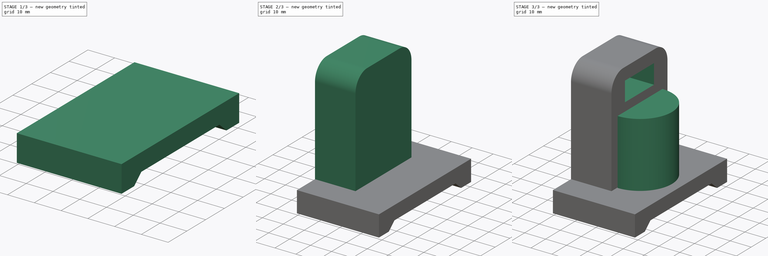
[diagram: build sequence overview — one tinted view per stage of 3, left to right]
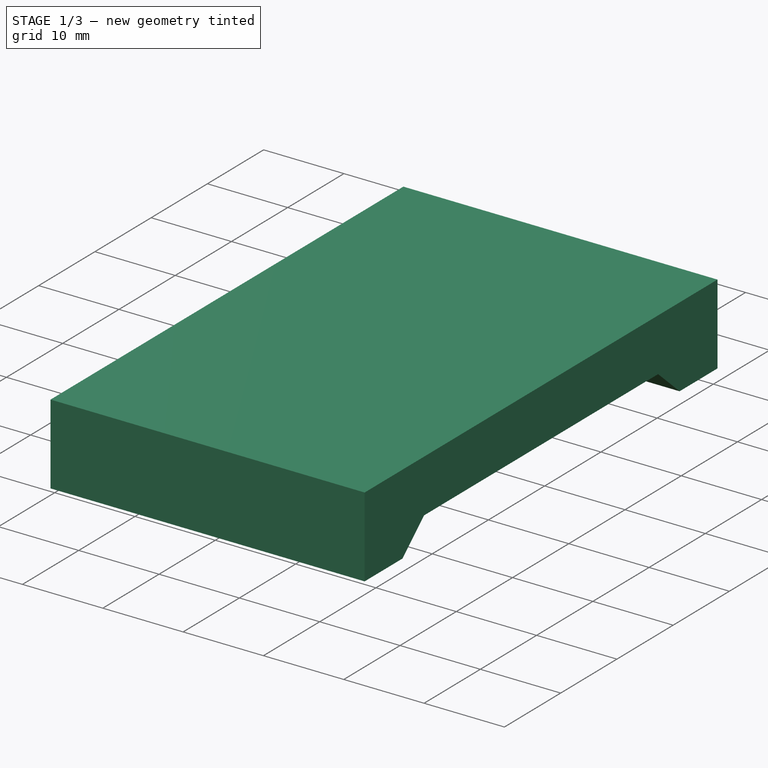
[diagram: stage 1 of 3 — iso view after this stage's code; geometry added in this stage tinted green]
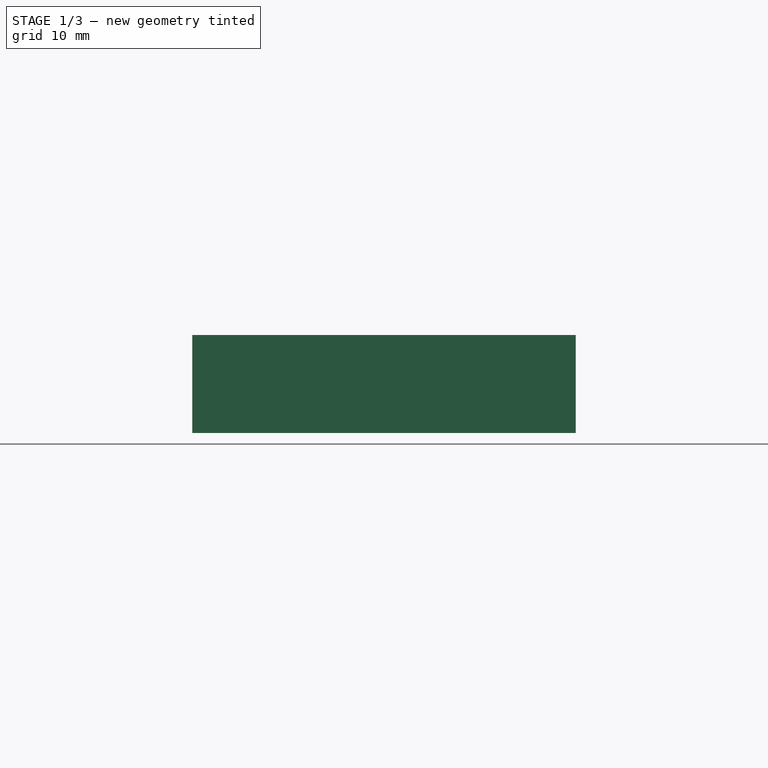
[diagram: stage 1 of 3 — front view after this stage's code; geometry added in this stage tinted green]
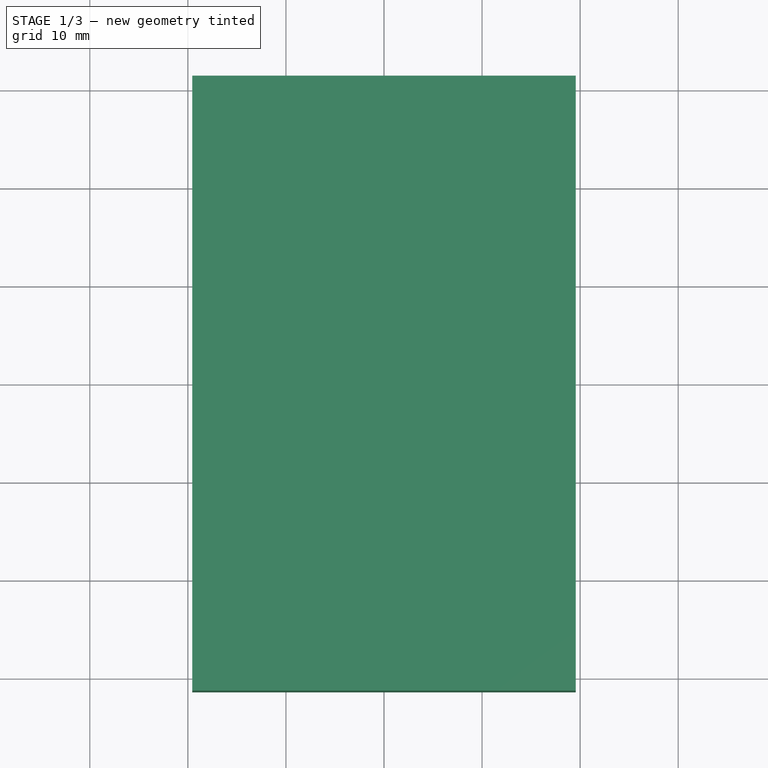
[diagram: stage 1 of 3 — top view after this stage's code; geometry added in this stage tinted green]
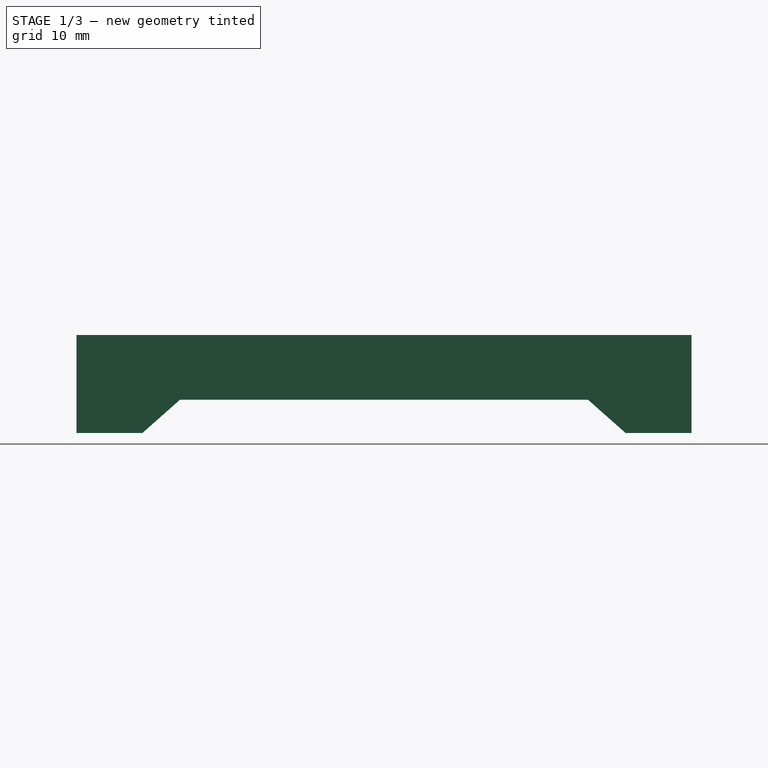
[diagram: stage 1 of 3 — right view after this stage's code; geometry added in this stage tinted green]
FCSTD DOCUMENT  (FreeCAD 0.21R33771 (Git))
Label: ex68
License: All rights reserved
LicenseURL: http://en.wikipedia.org/wiki/All_rights_reserved
objects: Sketcher::SketchObject×5, PartDesign::Pad×3, PartDesign::Pocket×2, PartDesign::Fillet×1, PartDesign::Body×1
note: 18 computed .brp shape members not serialized (recipe doc carries the construction recipe); baked Part::Feature solids carry a one-line shape summary decoded from their .brp

FEATURE [Sketcher::SketchObject] Sketch
  FullyConstrained = false
  MapMode = 5
  Support = -> [XY_Plane]
  sketch-geometry (5):
    g0: LineSegment StartX=-19.5508 StartY=31.3644 StartZ=0 EndX=-19.5508 EndY=-31.3644 EndZ=0
    g1: LineSegment StartX=-19.5508 StartY=-31.3644 StartZ=0 EndX=19.5508 EndY=-31.3644 EndZ=0
    g2: LineSegment StartX=19.5508 StartY=-31.3644 StartZ=0 EndX=19.5508 EndY=31.3644 EndZ=0
    g3: LineSegment StartX=19.5508 StartY=31.3644 StartZ=0 EndX=-19.5508 EndY=31.3644 EndZ=0
    g4: GeomPoint X=0 Y=0 Z=0
  constraints (10):
    c: Coincident(g0,g1)
    c: Coincident(g1,g2)
    c: Coincident(g2,g3)
    c: Coincident(g3,g0)
    c: Horizontal(g1)
    c: Horizontal(g3)
    c: Vertical(g0)
    c: Vertical(g2)
    c: Symmetric(g1,g0,g4)
    c: Coincident(g4,g-1)
FEATURE [PartDesign::Pad] Pad
  Direction = (0,0,1)
  Length = 10
  Length2 = 10
  Profile = -> Sketch
  ReferenceAxis = -> Sketch [N_Axis]
  Refine = true
  Type = 0
FEATURE [Sketcher::SketchObject] Sketch001
  FullyConstrained = false
  MapMode = 5
  Placement = pos=(19.5508,0,0) rot=(0.57735,0.57735,0.57735;2.0944rad)
  Support = -> [Pad]
  sketch-geometry (4):
    g0: LineSegment StartX=-24.6397 StartY=0 StartZ=0 EndX=-20.813 EndY=3.39147 EndZ=0
    g1: LineSegment StartX=-20.813 StartY=3.39147 StartZ=0 EndX=20.813 EndY=3.39147 EndZ=0
    g2: LineSegment StartX=20.813 StartY=3.39147 StartZ=0 EndX=24.6397 EndY=0 EndZ=0
    g3: LineSegment StartX=-24.6397 StartY=0 StartZ=0 EndX=24.6397 EndY=0 EndZ=0
  constraints (7):
    c: PointOnObject(g0,g-1)
    c: Coincident(g2,g1)
    c: Symmetric(g0,g2,g-1)
    c: Symmetric(g0,g1,g-2)
    c: Coincident(g0,g1)
    c: Coincident(g3,g0)
    c: Coincident(g3,g2)
FEATURE [PartDesign::Pocket] Pocket
  BaseFeature = -> Pad
  Direction = (-1,0,0)
  Length = 5
  Length2 = 5
  Profile = -> Sketch001
  ReferenceAxis = -> Sketch001 [N_Axis]
  Refine = true
  Type = 1
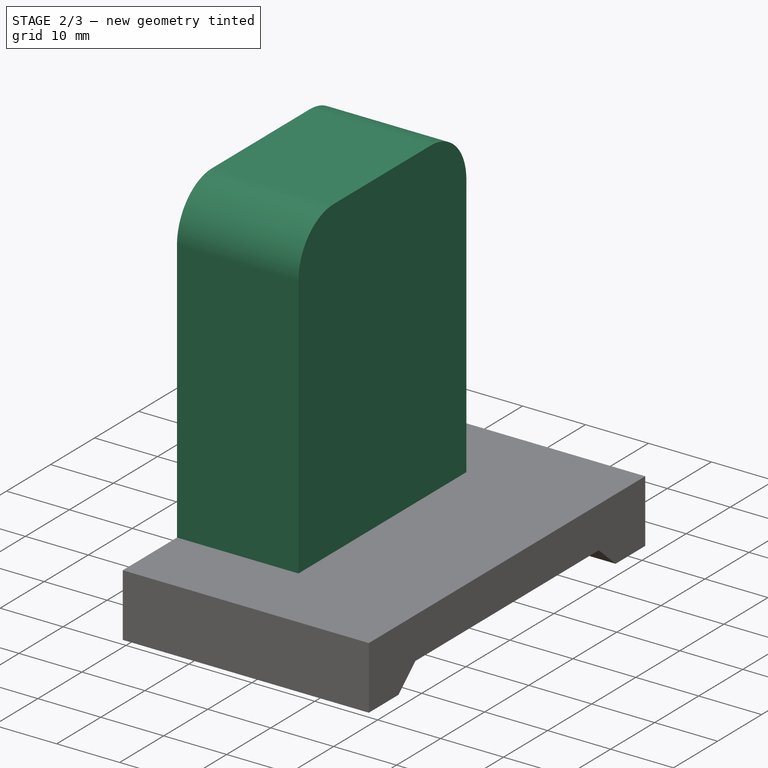
[diagram: stage 2 of 3 — iso view after this stage's code; geometry added in this stage tinted green]
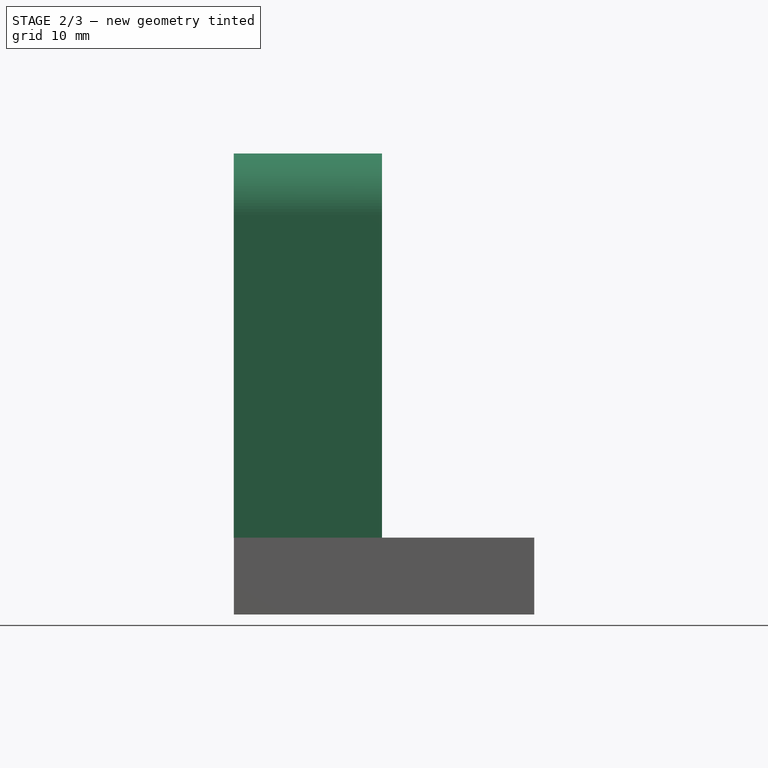
[diagram: stage 2 of 3 — front view after this stage's code; geometry added in this stage tinted green]
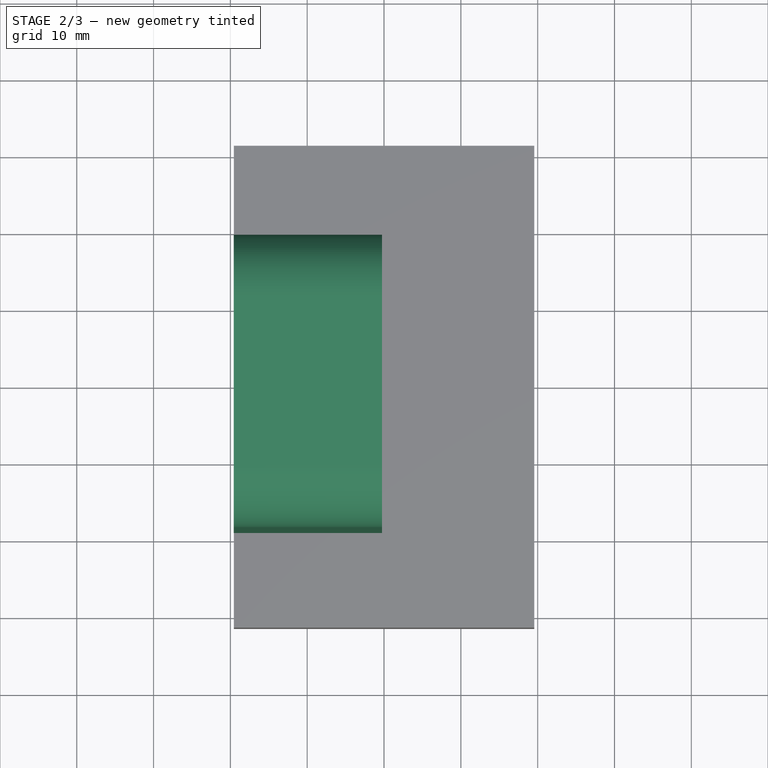
[diagram: stage 2 of 3 — top view after this stage's code; geometry added in this stage tinted green]
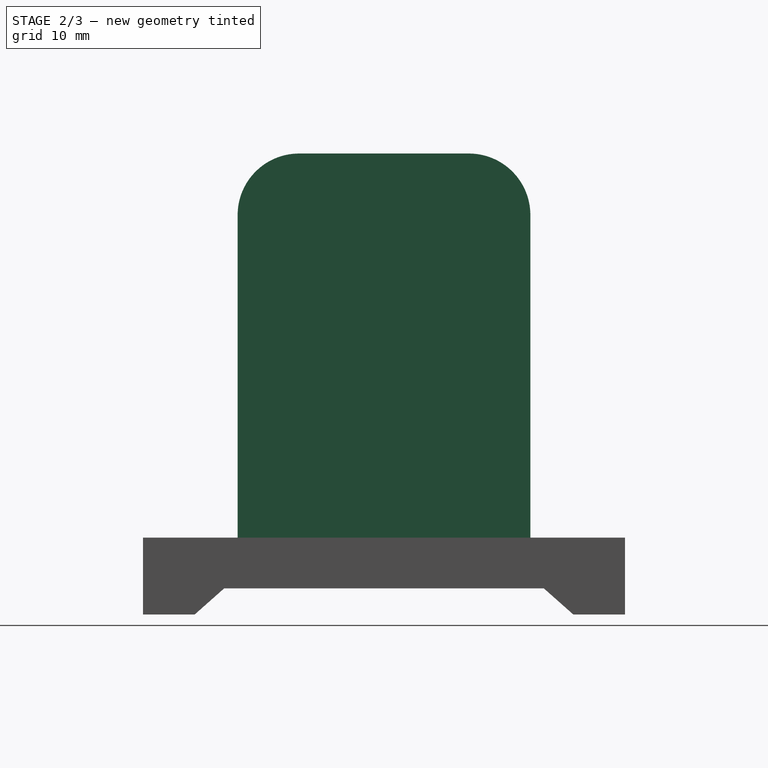
[diagram: stage 2 of 3 — right view after this stage's code; geometry added in this stage tinted green]
FEATURE [Sketcher::SketchObject] Sketch002
  FullyConstrained = false
  MapMode = 5
  Placement = pos=(0,0,10) rot=(0,0,1;0rad)
  Support = -> [Pocket]
  sketch-geometry (5):
    g0: LineSegment StartX=-0.255606 StartY=-19.0516 StartZ=0 EndX=-0.255606 EndY=19.0516 EndZ=0
    g1: LineSegment StartX=-0.255606 StartY=19.0516 StartZ=0 EndX=-19.5568 EndY=19.0516 EndZ=0
    g2: LineSegment StartX=-19.5568 StartY=19.0516 StartZ=0 EndX=-19.5568 EndY=-19.0516 EndZ=0
    g3: LineSegment StartX=-19.5568 StartY=-19.0516 StartZ=0 EndX=-0.255606 EndY=-19.0516 EndZ=0
    g4: GeomPoint X=-9.90619 Y=0 Z=0
  constraints (10):
    c: Coincident(g0,g1)
    c: Coincident(g1,g2)
    c: Coincident(g2,g3)
    c: Coincident(g3,g0)
    c: Horizontal(g1)
    c: Horizontal(g3)
    c: Vertical(g0)
    c: Vertical(g2)
    c: Symmetric(g1,g0,g4)
    c: PointOnObject(g4,g-1)
FEATURE [PartDesign::Pad] Pad001
  BaseFeature = -> Pocket
  Direction = (0,0,1)
  Length = 50
  Length2 = 10
  Profile = -> Sketch002
  ReferenceAxis = -> Sketch002 [N_Axis]
  Refine = true
  Type = 0
FEATURE [PartDesign::Fillet] Fillet
  Base = -> Pad001 [Edge35,Edge39]
  BaseFeature = -> Pad001
  Radius = 8
  Refine = true
  SupportTransform = false
  UseAllEdges = false
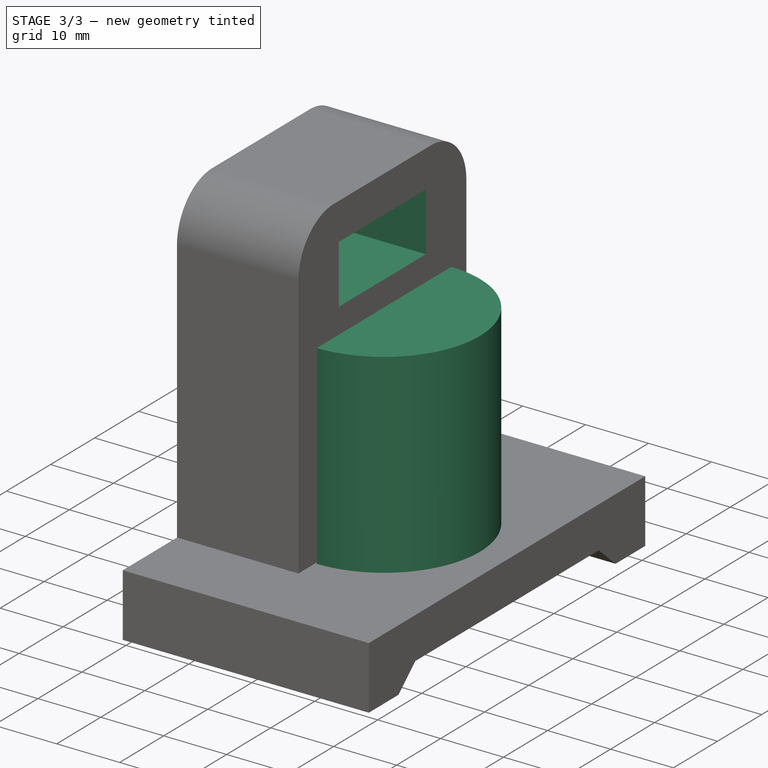
[diagram: stage 3 of 3 — iso view after this stage's code; geometry added in this stage tinted green]
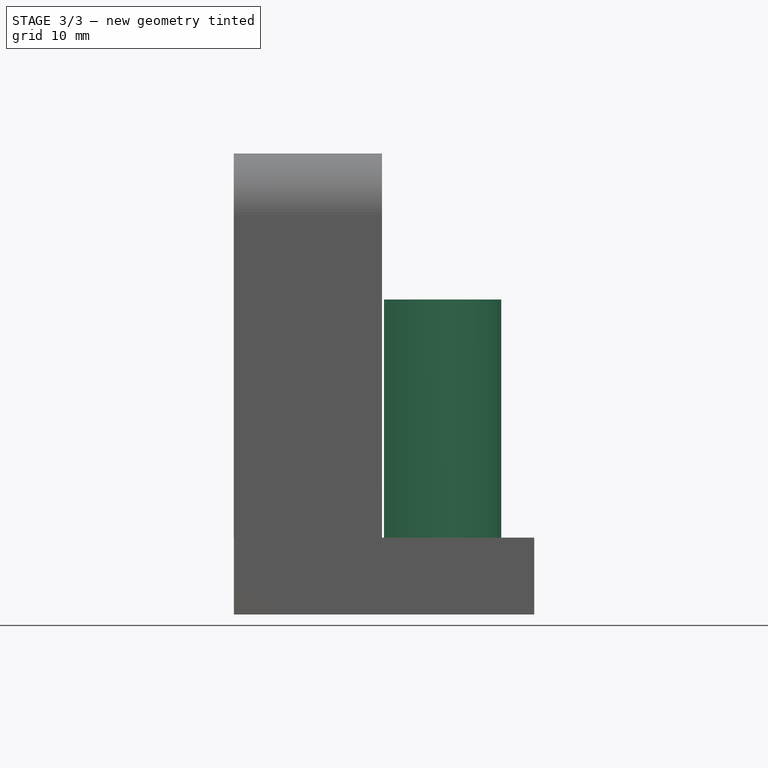
[diagram: stage 3 of 3 — front view after this stage's code; geometry added in this stage tinted green]
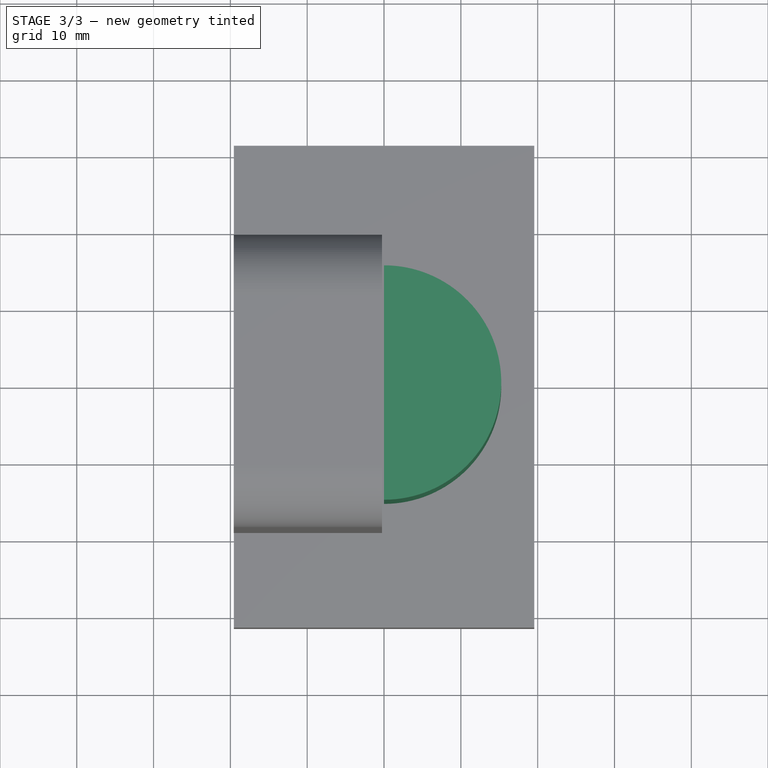
[diagram: stage 3 of 3 — top view after this stage's code; geometry added in this stage tinted green]
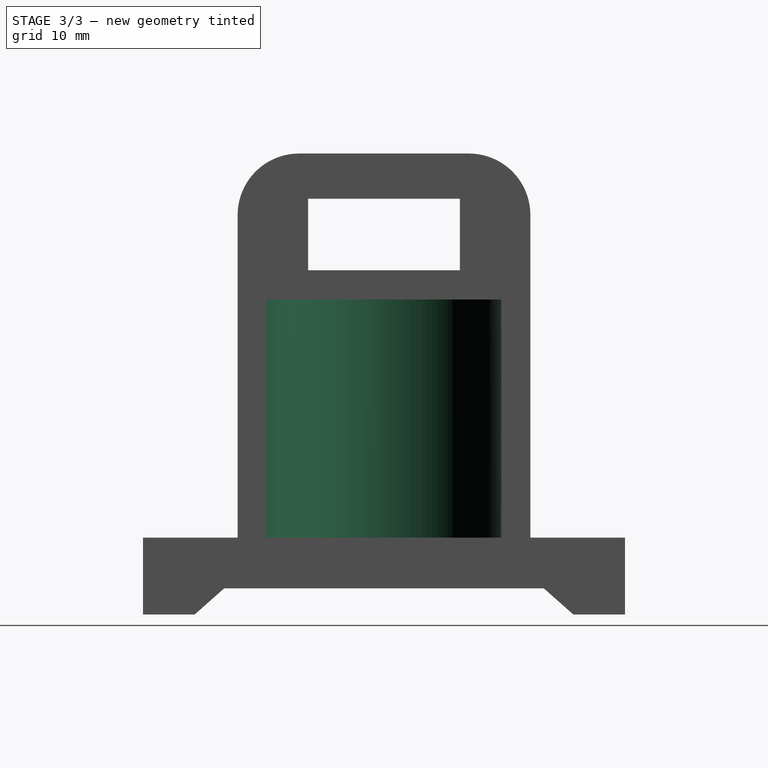
[diagram: stage 3 of 3 — right view after this stage's code; geometry added in this stage tinted green]
FEATURE [Sketcher::SketchObject] Sketch003
  FullyConstrained = false
  MapMode = 5
  Placement = pos=(0,0,10) rot=(0,0,1;0rad)
  Support = -> [Fillet]
  sketch-geometry (3):
    g0: ArcOfCircle CenterX=-2.8e-15 CenterY=0 CenterZ=0 NormalX=0 NormalY=0 NormalZ=1 AngleXU=0 Radius=15.2603 StartAngle=4.71239 EndAngle=7.85398
    g1: LineSegment StartX=-2.8e-15 StartY=0 StartZ=0 EndX=-2.8e-15 EndY=15.2603 EndZ=0
    g2: LineSegment StartX=-2.8e-15 StartY=0 StartZ=0 EndX=-2.8e-15 EndY=-15.2603 EndZ=0
  constraints (7):
    c: Coincident(g0,g-1)
    c: Coincident(g1,g0)
    c: Vertical(g1)
    c: Coincident(g2,g0)
    c: Vertical(g2)
    c: Coincident(g0,g1)
    c: Coincident(g0,g2)
FEATURE [PartDesign::Pad] Pad002
  BaseFeature = -> Fillet
  Direction = (0,0,1)
  Length = 31
  Length2 = 10
  Profile = -> Sketch003
  ReferenceAxis = -> Sketch003 [N_Axis]
  Refine = true
  Type = 0
FEATURE [Sketcher::SketchObject] Sketch004
  FullyConstrained = false
  MapMode = 5
  Placement = pos=(-0.255606,0,0) rot=(0.57735,0.57735,0.57735;2.0944rad)
  Support = -> [Pad002]
  sketch-geometry (5):
    g0: LineSegment StartX=-9.87866 StartY=54.1188 StartZ=0 EndX=-9.87866 EndY=44.801 EndZ=0
    g1: LineSegment StartX=-9.87866 StartY=44.801 StartZ=0 EndX=9.87866 EndY=44.801 EndZ=0
    g2: LineSegment StartX=9.87866 StartY=44.801 StartZ=0 EndX=9.87866 EndY=54.1188 EndZ=0
    g3: LineSegment StartX=9.87866 StartY=54.1188 StartZ=0 EndX=-9.87866 EndY=54.1188 EndZ=0
    g4: GeomPoint X=0 Y=49.4599 Z=0
  constraints (10):
    c: Coincident(g0,g1)
    c: Coincident(g1,g2)
    c: Coincident(g2,g3)
    c: Coincident(g3,g0)
    c: Horizontal(g1)
    c: Horizontal(g3)
    c: Vertical(g0)
    c: Vertical(g2)
    c: Symmetric(g1,g0,g4)
    c: PointOnObject(g4,g-2)
FEATURE [PartDesign::Pocket] Pocket001
  BaseFeature = -> Pad002
  Direction = (-1,0,0)
  Length = 5
  Length2 = 5
  Profile = -> Sketch004
  ReferenceAxis = -> Sketch004 [N_Axis]
  Refine = true
  Type = 1
FEATURE [PartDesign::Body] Body
  Group = -> [Sketch,Pad,Sketch001,Pocket,Sketch002,Pad001,Fillet,Sketch003,Pad002,Sketch004,Pocket001]
  Origin = -> Origin
  Tip = -> Pocket001
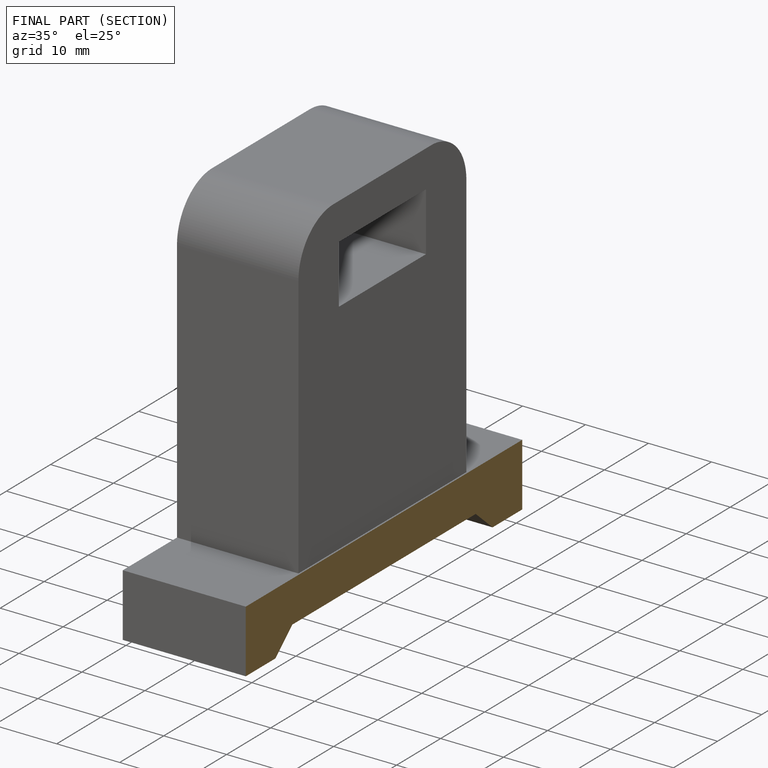
[diagram: finished part — half-section view (interior)]
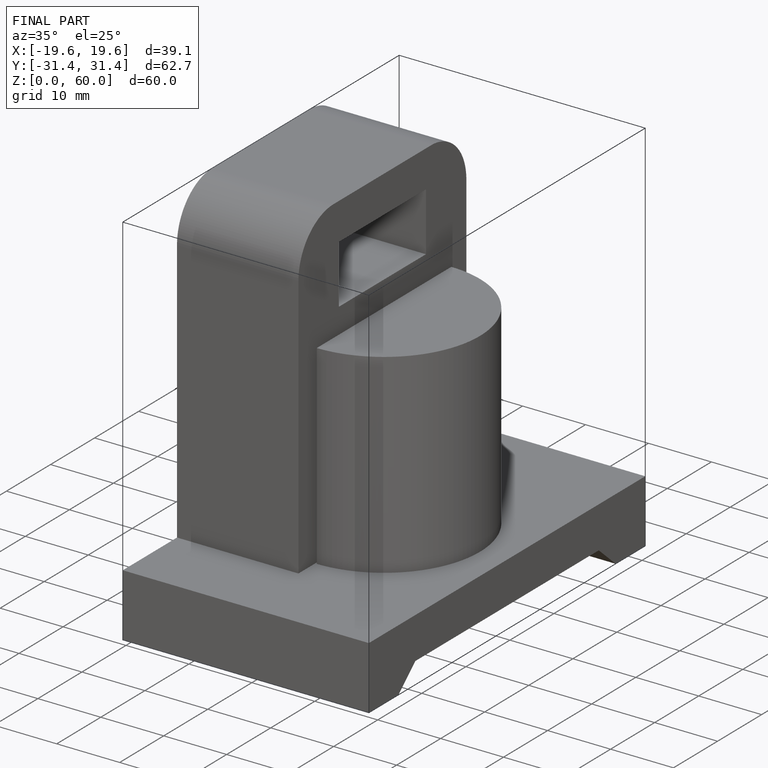
[diagram: finished part — iso view with bounding-box wireframe]
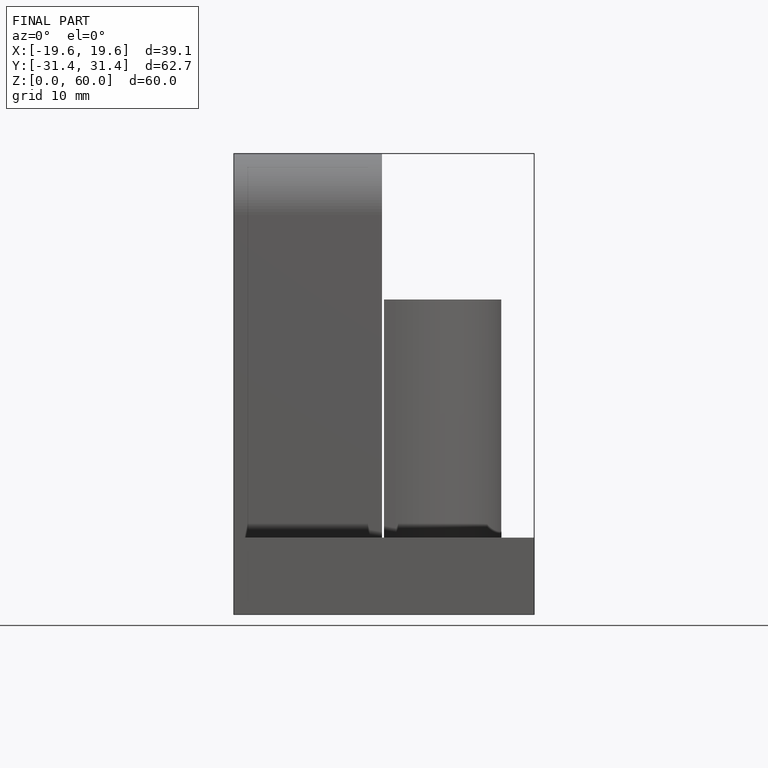
[diagram: finished part — front view with bounding-box wireframe]
